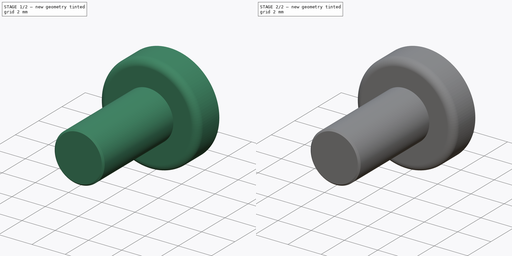
[diagram: build sequence overview — one tinted view per stage of 2, left to right]
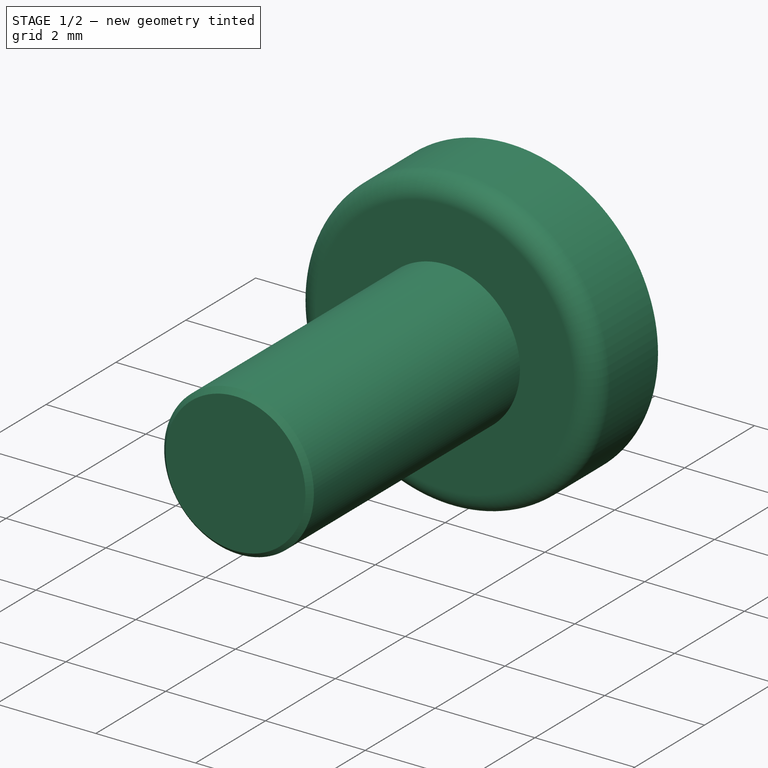
[diagram: stage 1 of 2 — iso view after this stage's code; geometry added in this stage tinted green]
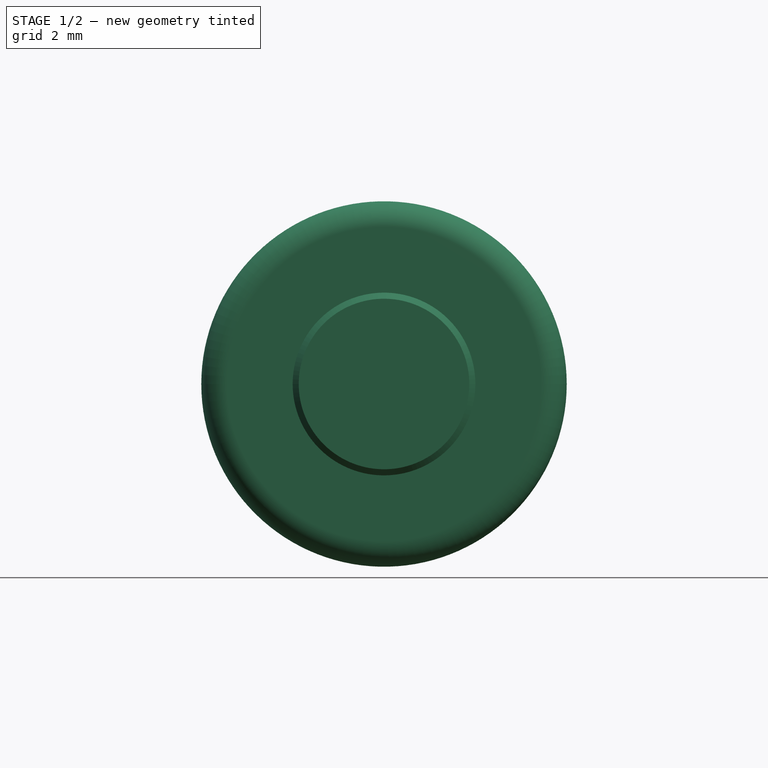
[diagram: stage 1 of 2 — front view after this stage's code; geometry added in this stage tinted green]
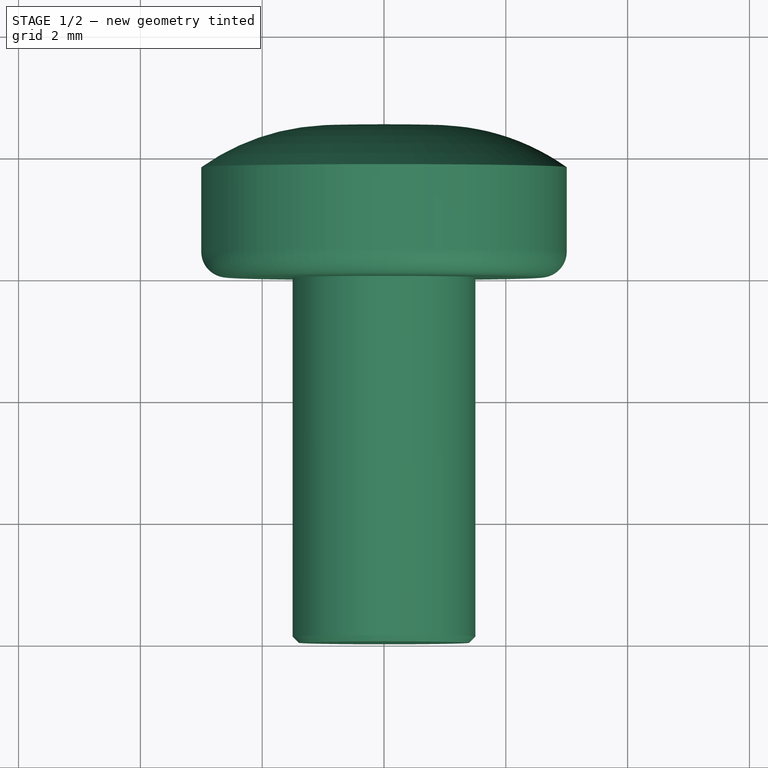
[diagram: stage 1 of 2 — top view after this stage's code; geometry added in this stage tinted green]
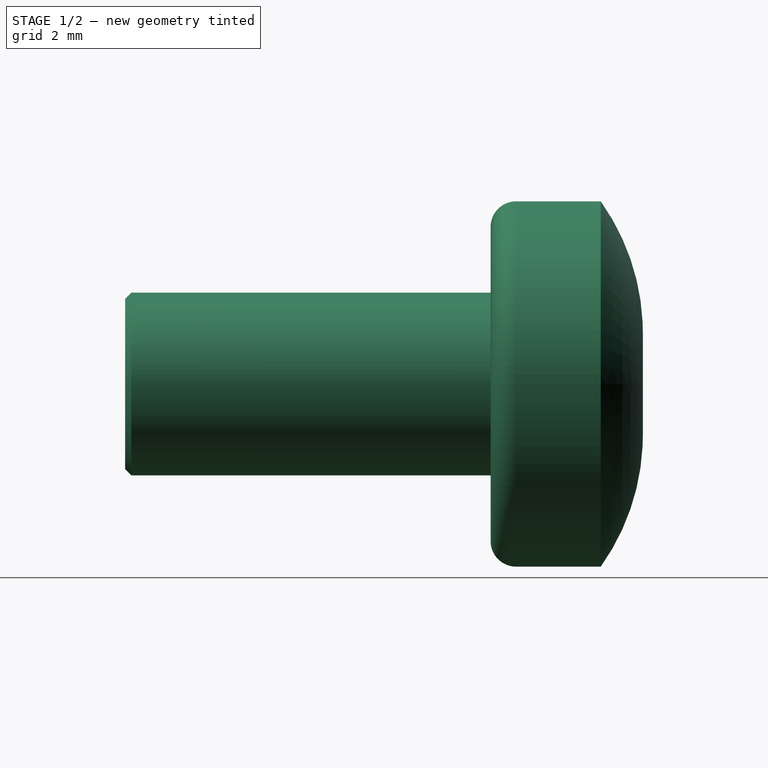
[diagram: stage 1 of 2 — right view after this stage's code; geometry added in this stage tinted green]
FCSTD DOCUMENT  (FreeCAD 0.17R13541 (Git))
Label: skrew-M3-white
License: All rights reserved
LicenseURL: http://en.wikipedia.org/wiki/All_rights_reserved
objects: Sketcher::SketchObject×2, PartDesign::Revolution×1, PartDesign::Pocket×1, PartDesign::Body×1
note: 7 computed .brp shape members not serialized (recipe doc carries the construction recipe); baked Part::Feature solids carry a one-line shape summary decoded from their .brp

FEATURE [Sketcher::SketchObject] Sketch
  MapMode = 5
  Support = -> [XY_Plane]
  sketch-geometry (9):
    g0: LineSegment StartX=0 StartY=-6 StartZ=0 EndX=1.4 EndY=-6 EndZ=0
    g1: LineSegment StartX=1.5 StartY=-5.9 StartZ=0 EndX=1.5 EndY=0 EndZ=0
    g2: LineSegment StartX=1.5 StartY=0 StartZ=0 EndX=2.57956 EndY=0 EndZ=0
    g3: LineSegment StartX=0.838329 StartY=2.5 StartZ=0 EndX=0 EndY=2.5 EndZ=0
    g4: ArcOfCircle CenterX=0.838329 CenterY=-1.22658 CenterZ=0 NormalX=0 NormalY=0 NormalZ=1 AngleXU=0 Radius=3.72658 StartAngle=0.951983 EndAngle=1.5708
    g5: LineSegment StartX=0 StartY=2.5 StartZ=0 EndX=0 EndY=-6 EndZ=0
    g6: LineSegment StartX=1.4 StartY=-6 StartZ=0 EndX=1.5 EndY=-5.9 EndZ=0
    g7: LineSegment StartX=3 StartY=1.80897 StartZ=0 EndX=3 EndY=0.420436 EndZ=0
    g8: ArcOfCircle CenterX=2.57956 CenterY=0.420436 CenterZ=0 NormalX=0 NormalY=0 NormalZ=1 AngleXU=0 Radius=0.420436 StartAngle=4.71239 EndAngle=6.28319
  constraints (23):
    c: Coincident(g1,g2)
    c: PointOnObject(g3,g-2)
    c: PointOnObject(g0,g-2)
    c: Horizontal(g0)
    c: Vertical(g1)
    c: Horizontal(g2)
    c: Horizontal(g3)
    c: Tangent(g3,g4) = -1.5708
    c: Distance(g0,g3) = 8.5
    c: DistanceY(g1,g3) = 2.5
    c: DistanceX(g-2,g4) = 3
    c: PointOnObject(g1,g-1)
    c: Coincident(g5,g3)
    c: Coincident(g5,g0)
    c: Distance(g1,g5) = 1.5
    c: Coincident(g0,g6)
    c: Coincident(g6,g1)
    c: Angle(g6,g0) = 2.35619
    c: Distance(g0) = 1.4
    c: Coincident(g8,g7)
    c: Coincident(g7,g4)
    c: Vertical(g7)
    c: Tangent(g8,g2) = -1.5708
FEATURE [PartDesign::Revolution] Revolution
  Angle = 360
  Axis = (0,1,0)
  Base = (0,0,0)
  Profile = -> Sketch
  ReferenceAxis = -> Sketch [V_Axis]
  Reversed = true
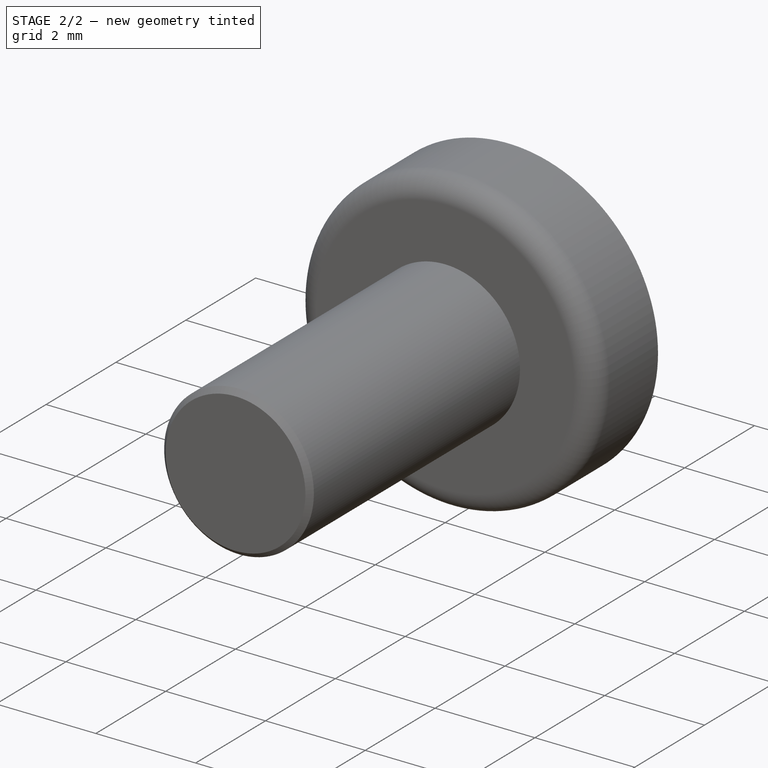
[diagram: stage 2 of 2 — iso view after this stage's code; geometry added in this stage tinted green]
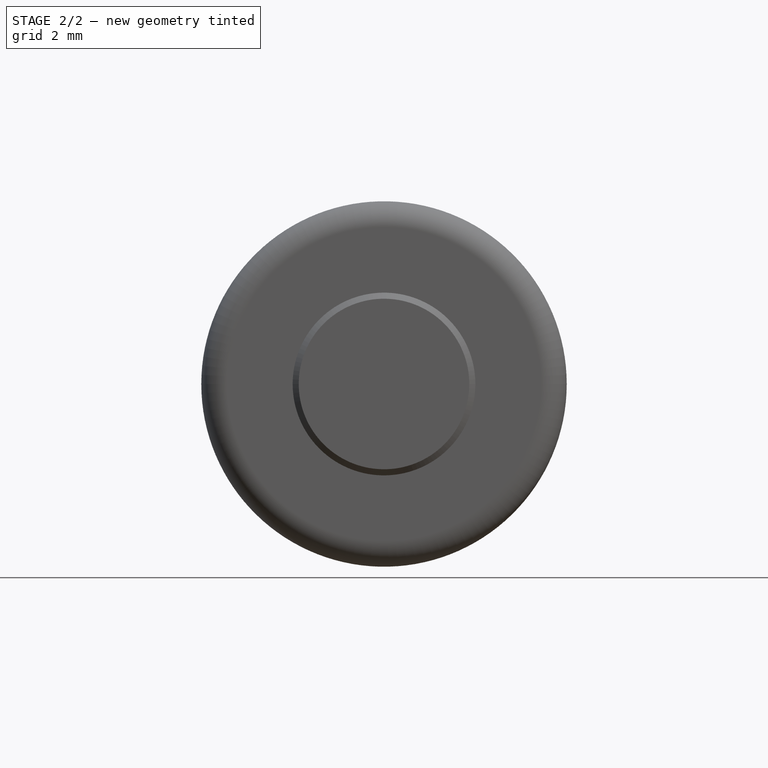
[diagram: stage 2 of 2 — front view after this stage's code; geometry added in this stage tinted green]
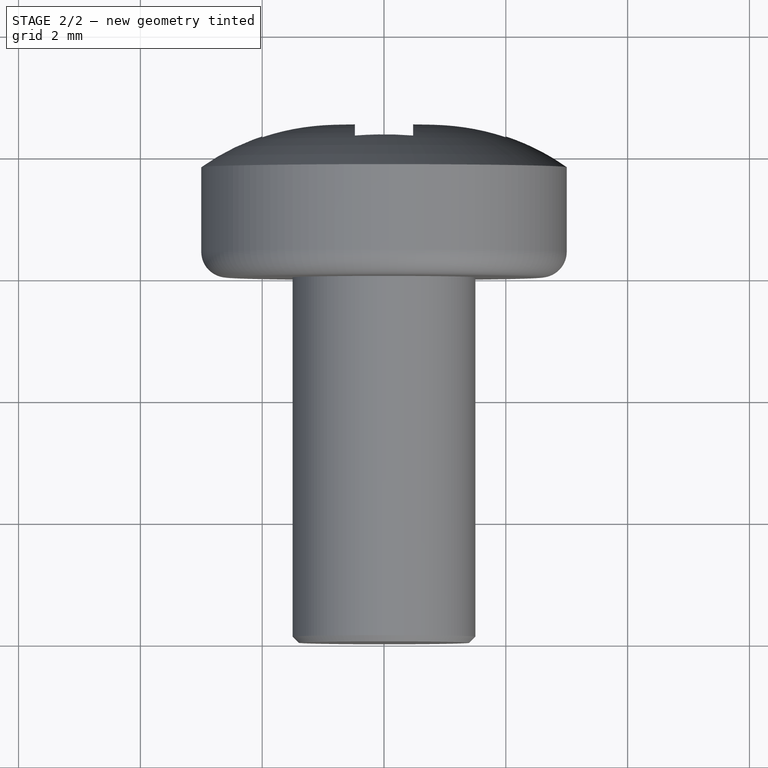
[diagram: stage 2 of 2 — top view after this stage's code; geometry added in this stage tinted green]
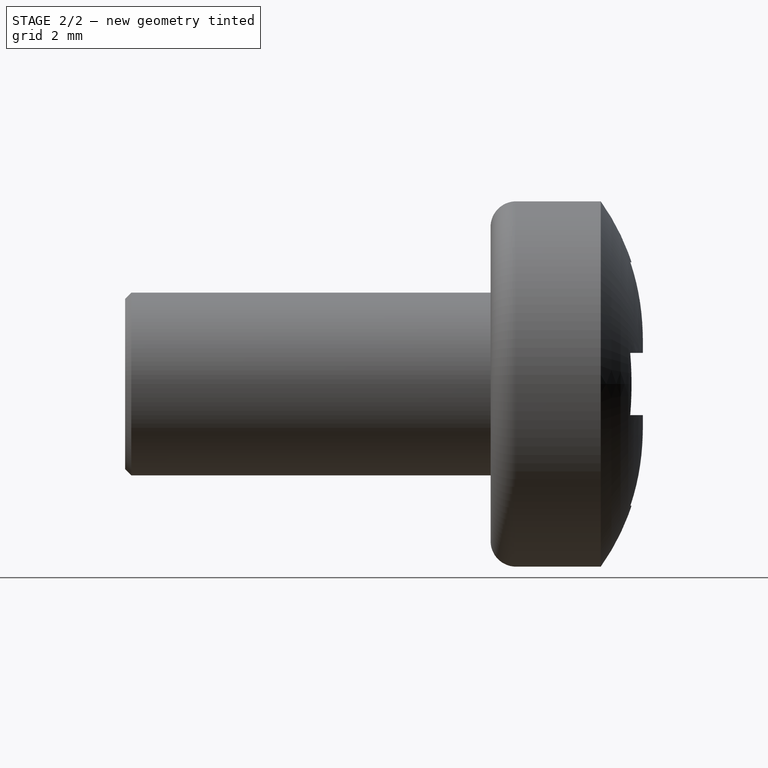
[diagram: stage 2 of 2 — right view after this stage's code; geometry added in this stage tinted green]
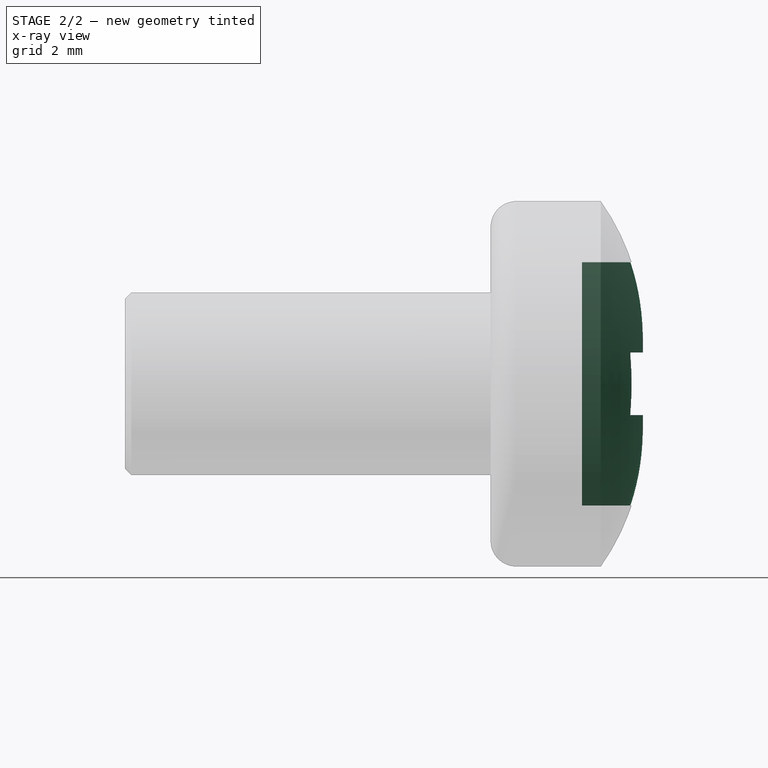
[diagram: stage 2 of 2 — x-ray composite at the right view; earlier geometry ghosted, this stage's added geometry solid]
FEATURE [Sketcher::SketchObject] Sketch001
  MapMode = 5
  Placement = pos=(0,2.5,0) rot=(0,0.707107,0.707107;3.14159rad)
  Support = -> [Revolution]
  sketch-geometry (13):
    g0: LineSegment StartX=-0.478807 StartY=2 StartZ=0 EndX=0.478807 EndY=2 EndZ=0
    g1: LineSegment StartX=0.478807 StartY=2 StartZ=0 EndX=0.478807 EndY=0.510631 EndZ=0
    g2: LineSegment StartX=0.478807 StartY=0.510631 StartZ=0 EndX=2 EndY=0.510631 EndZ=0
    g3: LineSegment StartX=2 StartY=0.510631 StartZ=0 EndX=2 EndY=-0.510631 EndZ=0
    g4: LineSegment StartX=2 StartY=-0.510631 StartZ=0 EndX=0.478807 EndY=-0.510631 EndZ=0
    g5: LineSegment StartX=0.478807 StartY=-0.510631 StartZ=0 EndX=0.478807 EndY=-2 EndZ=0
    g6: LineSegment StartX=0.478807 StartY=-2 StartZ=0 EndX=-0.478807 EndY=-2 EndZ=0
    g7: LineSegment StartX=-0.478807 StartY=-2 StartZ=0 EndX=-0.478807 EndY=-0.510631 EndZ=0
    g8: LineSegment StartX=-0.478807 StartY=-0.510631 StartZ=0 EndX=-2 EndY=-0.510631 EndZ=0
    g9: LineSegment StartX=-2 StartY=-0.510631 StartZ=0 EndX=-2 EndY=0.510631 EndZ=0
    g10: LineSegment StartX=-2 StartY=0.510631 StartZ=0 EndX=-0.478807 EndY=0.510631 EndZ=0
    g11: LineSegment StartX=-0.478807 StartY=0.510631 StartZ=0 EndX=-0.478807 EndY=2 EndZ=0
    g12: Circle [constr] CenterX=0 CenterY=0 CenterZ=0 NormalX=0 NormalY=0 NormalZ=1 AngleXU=0 Radius=0.7
  constraints (37):
    c: Coincident(g0,g1)
    c: Coincident(g1,g2)
    c: Coincident(g2,g3)
    c: Coincident(g3,g4)
    c: Coincident(g4,g5)
    c: Coincident(g5,g6)
    c: Coincident(g6,g7)
    c: Coincident(g7,g8)
    c: Coincident(g8,g9)
    c: Coincident(g9,g10)
    c: Coincident(g10,g11)
    c: Coincident(g11,g0)
    c: Horizontal(g6)
    c: Horizontal(g0)
    c: Vertical(g3)
    c: Vertical(g9)
    c: Vertical(g0,g10)
    c: Vertical(g10,g7)
    c: Vertical(g7,g6)
    c: Vertical(g1,g0)
    c: Vertical(g0,g4)
    c: Vertical(g4,g5)
    c: Horizontal(g3,g4)
    c: Horizontal(g4,g7)
    c: Horizontal(g7,g8)
    c: Horizontal(g9,g10)
    c: Horizontal(g10,g1)
    c: Horizontal(g1,g2)
    c: Distance(g9,g2) = 4
    c: DistanceX(g-2,g2) = 2
    c: DistanceY(g-1,g0) = 2
    c: DistanceY(g-1,g5) = -2
    c: PointOnObject(g4,g12)
    c: PointOnObject(g1,g12)
    c: PointOnObject(g10,g12)
    c: Coincident(g12,g-1)
    c: Radius(g12) = 0.7
FEATURE [PartDesign::Pocket] Pocket
  BaseFeature = -> Revolution
  Length = 1
  Length2 = 100
  Profile = -> Sketch001
  Type = 0
FEATURE [PartDesign::Body] Body
  Group = -> [Sketch,Revolution,Sketch001,Pocket]
  Origin = -> Origin
  Tip = -> Pocket
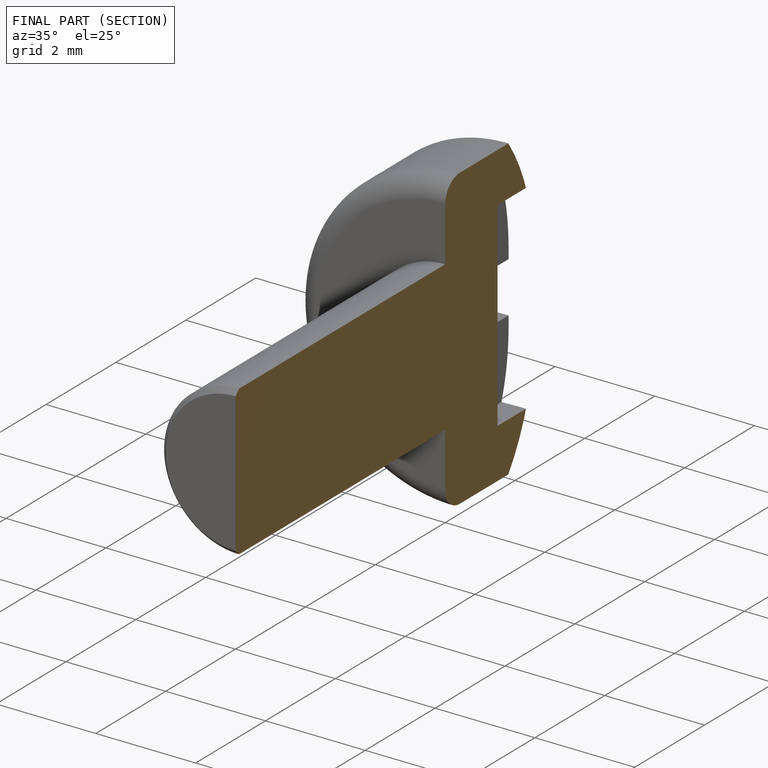
[diagram: finished part — half-section view (interior)]
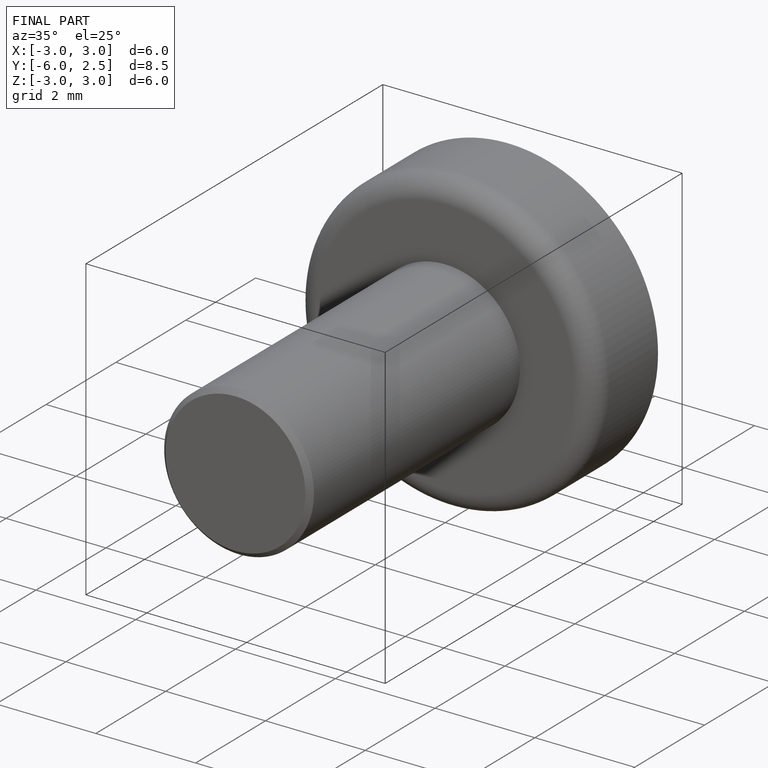
[diagram: finished part — iso view with bounding-box wireframe]
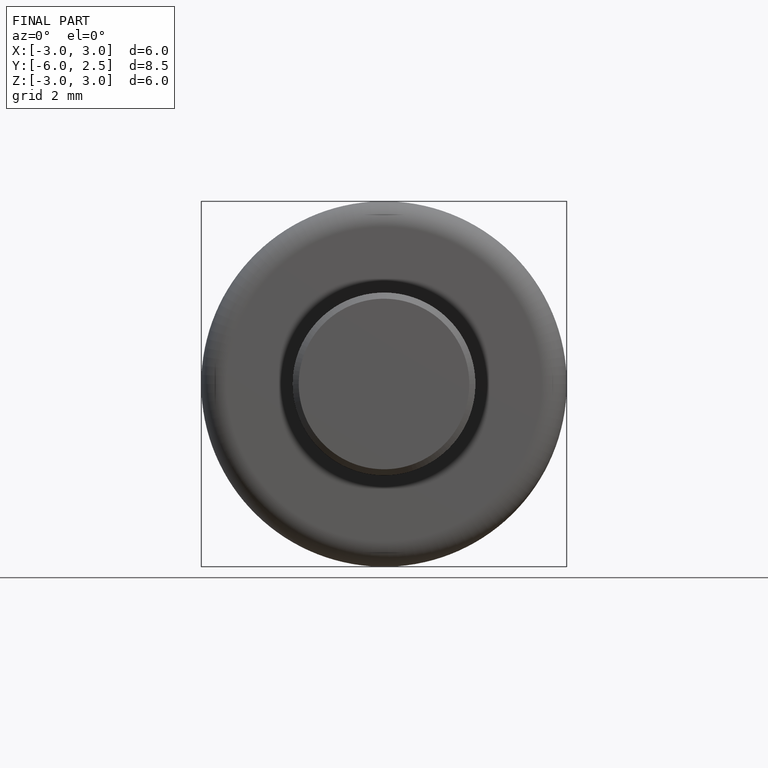
[diagram: finished part — front view with bounding-box wireframe]
